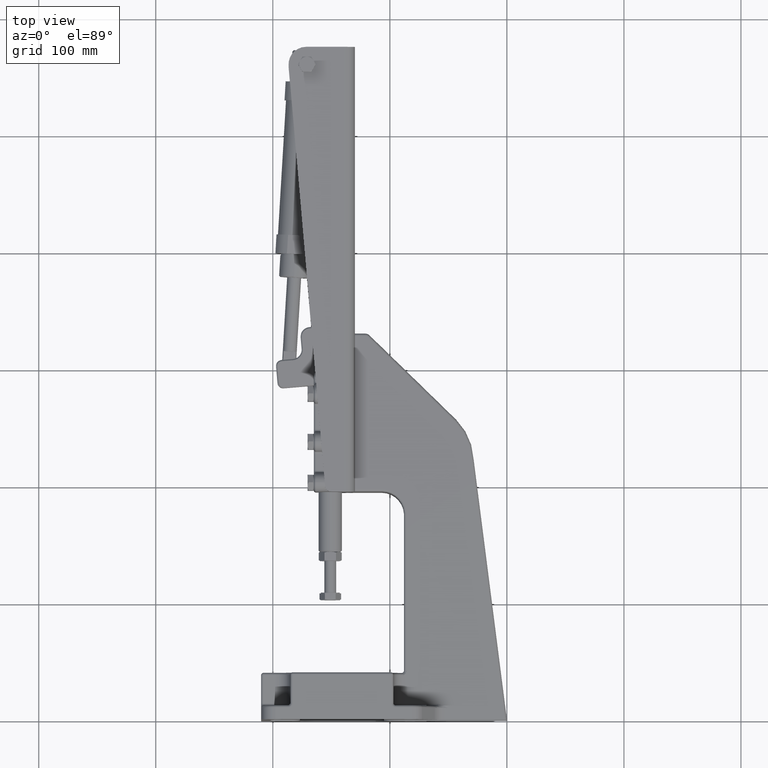
[diagram: clean part render]
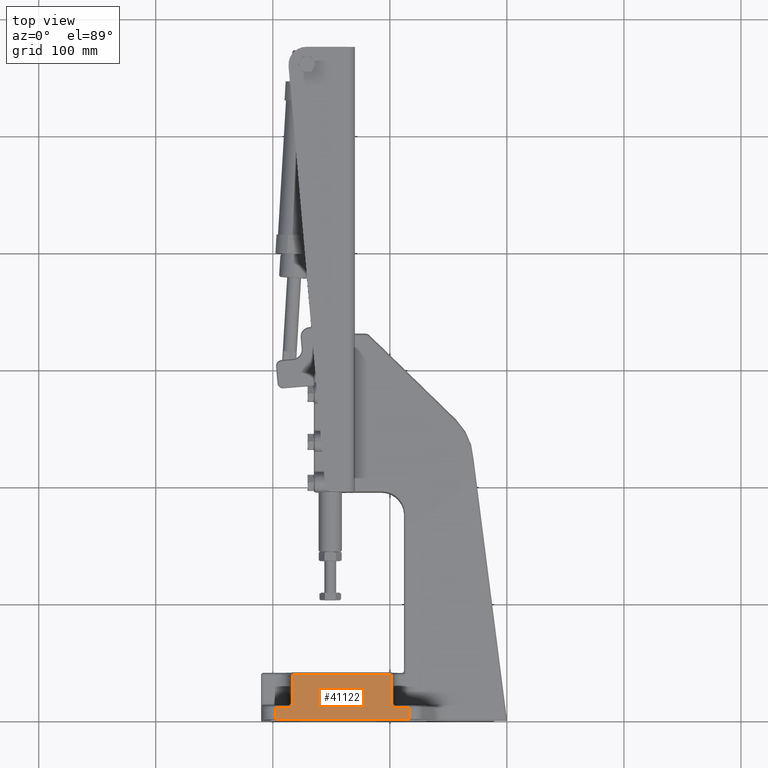
[diagram: same view with one face highlighted and labeled with its STEP entity id]
A machine part, top view. The second image highlights one B-rep face of the part: STEP entity #41122.
In plain terms, the highlighted planar face has unit normal (0, 0, 1).
Its self-contained STEP definition (entity closure, byte-faithful):
#679 = EDGE_CURVE ( 'NONE', #31481, #43839, #14918, .T. ) ;
#740 = VERTEX_POINT ( 'NONE', #31330 ) ;
#752 = ORIENTED_EDGE ( 'NONE', *, *, #47433, .T. ) ;
#975 = VERTEX_POINT ( 'NONE', #36627 ) ;
#1118 = CARTESIAN_POINT ( 'NONE',  ( -197.4999999999999400, 4.999997954310738500, 62.99999999999998600 ) ) ;
#2122 = LINE ( 'NONE', #14813, #22978 ) ;
#2893 = CARTESIAN_POINT ( 'NONE',  ( -95.65117687197815100, 10.03724001434191800, 62.99999999999998600 ) ) ;
#3084 = CARTESIAN_POINT ( 'NONE',  ( -98.39655428205703900, 11.88234690341328700, 62.99999999999998600 ) ) ;
#3622 = CARTESIAN_POINT ( 'NONE',  ( -183.1479819396858200, 12.90553550497596400, 63.00000000000000000 ) ) ;
#3722 = EDGE_CURVE ( 'NONE', #29068, #46707, #51072, .T. ) ;
#3800 = CARTESIAN_POINT ( 'NONE',  ( -184.6919927558711800, 10.71526550956282300, 63.00000000000000000 ) ) ;
#3983 = VECTOR ( 'NONE', #16330, 1000.000000000000000 ) ;
#5099 = ORIENTED_EDGE ( 'NONE', *, *, #36338, .F. ) ;
#5607 = CARTESIAN_POINT ( 'NONE',  ( -197.4999999999999400, -1.984805718320697100E-006, 62.99999999999998600 ) ) ;
#5639 = VECTOR ( 'NONE', #22974, 1000.000000000000100 ) ;
#5977 = ORIENTED_EDGE ( 'NONE', *, *, #12940, .T. ) ;
#6166 = LINE ( 'NONE', #12402, #50499 ) ;
#7096 = CARTESIAN_POINT ( 'NONE',  ( -96.28205824634190400, 10.21052060636581500, 63.00000000000000000 ) ) ;
#7283 = CARTESIAN_POINT ( 'NONE',  ( -98.58553286456498200, 12.22626110479905000, 63.00000000000000000 ) ) ;
#7614 = ORIENTED_EDGE ( 'NONE', *, *, #32899, .T. ) ;
#7809 = CARTESIAN_POINT ( 'NONE',  ( -183.2541490584441400, 12.59415721272771200, 62.99999999999995700 ) ) ;
#7979 = CARTESIAN_POINT ( 'NONE',  ( -185.2670086618838900, 10.39391625220581800, 62.99999999999997200 ) ) ;
#8426 = CARTESIAN_POINT ( 'NONE',  ( -183.0000000000001400, 13.99999795431086000, 62.99999999999998600 ) ) ;
#9145 = DIRECTION ( 'NONE',  ( -0.0000000000000000000, 1.000000000000000000, -0.0000000000000000000 ) ) ;
#9181 = VECTOR ( 'NONE', #16045, 1000.000000000000000 ) ;
#10676 = CARTESIAN_POINT ( 'NONE',  ( -95.00000000000031300, 9.999997954310712700, 62.99999999999998600 ) ) ;
#11221 = VERTEX_POINT ( 'NONE', #45269 ) ;
#11276 = CARTESIAN_POINT ( 'NONE',  ( -96.47001264296518700, 10.27946296903153300, 62.99999999999997200 ) ) ;
#11446 = CARTESIAN_POINT ( 'NONE',  ( -98.67013951434823600, 12.40857852222943900, 63.00000000000000000 ) ) ;
#11984 = CARTESIAN_POINT ( 'NONE',  ( -183.4079819476805300, 12.21666058303593000, 63.00000000000000000 ) ) ;
#12155 = CARTESIAN_POINT ( 'NONE',  ( -185.4117089329817200, 10.32877924646527000, 63.00000000000000000 ) ) ;
#12402 = CARTESIAN_POINT ( 'NONE',  ( -140.4517059221717500, 9.999997954310618600, 62.99999999999998600 ) ) ;
#12940 = EDGE_CURVE ( 'NONE', #53468, #975, #47056, .T. ) ;
#13668 = CARTESIAN_POINT ( 'NONE',  ( -197.4999999999999400, -1.923921984000001300E-006, 62.99999999999998600 ) ) ;
#14691 = B_SPLINE_CURVE_WITH_KNOTS ( 'NONE', 3,
 ( #44490, #15244, #2893, #31987, #7096, #36202, #11276, #40453, #15414, #44663, #19617, #48835, #23817, #53044, #28026, #3084, #32161, #7283, #36391, #11446, #40630, #15602, #44845 ),
 .UNSPECIFIED., .F., .F.,
 ( 4, 1, 1, 2, 2, 1, 1, 2, 2, 2, 1, 2, 2, 4 ),
 ( 0.0000000000000000000, 0.1250000000000076900, 0.1875000000000081600, 0.2187500000000115700, 0.2500000000000149300, 0.3750000000000163200, 0.4375000000000142700, 0.4687500000000134300, 0.5000000000000126600, 0.6250000000000089900, 0.6875000000000075500, 0.7187500000000067700, 0.7500000000000060000, 1.000000000000000000 ),
 .UNSPECIFIED. ) ;
#14813 = CARTESIAN_POINT ( 'NONE',  ( -98.99999999999961600, 18.99999801519441400, 62.99999999999998600 ) ) ;
#14918 = LINE ( 'NONE', #1118, #24697 ) ;
#15244 = CARTESIAN_POINT ( 'NONE',  ( -95.26276294616917500, 9.999530426474562400, 63.00000000000000000 ) ) ;
#15374 = ORIENTED_EDGE ( 'NONE', *, *, #47018, .T. ) ;
#15414 = CARTESIAN_POINT ( 'NONE',  ( -97.11799300934134700, 10.58798418656802700, 63.00000000000000000 ) ) ;
#15602 = CARTESIAN_POINT ( 'NONE',  ( -98.99992873155238700, 13.47398199506984200, 63.00000000000000000 ) ) ;
#16045 = DIRECTION ( 'NONE',  ( -0.0000000000000000000, -1.000000000000000000, -0.0000000000000000000 ) ) ;
#16124 = CARTESIAN_POINT ( 'NONE',  ( -183.8879284219335100, 11.47942955009997800, 62.99999999999998600 ) ) ;
#16319 = CARTESIAN_POINT ( 'NONE',  ( -185.9590606788071300, 10.10140521188155200, 62.99999999999998600 ) ) ;
#16330 = DIRECTION ( 'NONE',  ( -1.000000000000000000, -0.0000000000000000000, -0.0000000000000000000 ) ) ;
#17851 = DIRECTION ( 'NONE',  ( 1.000000000000000000, 0.0000000000000000000, 0.0000000000000000000 ) ) ;
#18327 = ORIENTED_EDGE ( 'NONE', *, *, #20933, .T. ) ;
#18715 = CARTESIAN_POINT ( 'NONE',  ( -83.40341184434360900, 18.99999801519441400, 62.99999999999998600 ) ) ;
#18758 = CARTESIAN_POINT ( 'NONE',  ( -105.0000000000000100, -1.022844665000000300E-006, 62.99999999999998600 ) ) ;
#19617 = CARTESIAN_POINT ( 'NONE',  ( -97.63459042540999600, 10.98955287581038200, 62.99999999999998600 ) ) ;
#20334 = CARTESIAN_POINT ( 'NONE',  ( -184.1306803110779800, 11.21268617427315600, 62.99999999999998600 ) ) ;
#20506 = CARTESIAN_POINT ( 'NONE',  ( -187.0000000000001700, 9.999997954310712700, 62.99999999999998600 ) ) ;
#20933 = EDGE_CURVE ( 'NONE', #21360, #11221, #14691, .T. ) ;
#20988 = DIRECTION ( 'NONE',  ( -1.000000000000000000, -0.0000000000000000000, -0.0000000000000000000 ) ) ;
#21360 = VERTEX_POINT ( 'NONE', #10676 ) ;
#22974 = DIRECTION ( 'NONE',  ( -0.9999999999999998900, -9.741377761904765000E-009, -0.0000000000000000000 ) ) ;
#22978 = VECTOR ( 'NONE', #35782, 1000.000000000000000 ) ;
#23817 = CARTESIAN_POINT ( 'NONE',  ( -97.78199226941309500, 11.12531155039710900, 63.00000000000001400 ) ) ;
#24343 = CARTESIAN_POINT ( 'NONE',  ( -182.9996118433224700, 13.73656342735063200, 62.99999999999995700 ) ) ;
#24522 = CARTESIAN_POINT ( 'NONE',  ( -184.1919160159218600, 11.15135282074953700, 63.00000000000000000 ) ) ;
#24641 = VERTEX_POINT ( 'NONE', #47649 ) ;
#24697 = VECTOR ( 'NONE', #9145, 1000.000000000000000 ) ;
#25850 = ORIENTED_EDGE ( 'NONE', *, *, #51559, .T. ) ;
#28026 = CARTESIAN_POINT ( 'NONE',  ( -98.18172880877769200, 11.56060706369512300, 62.99999999999998600 ) ) ;
#28373 = CARTESIAN_POINT ( 'NONE',  ( -183.0372334224929900, 13.34782890250499500, 63.00000000000002800 ) ) ;
#28564 = CARTESIAN_POINT ( 'NONE',  ( -183.0000000000001400, 13.99999795431086000, 62.99999999999998600 ) ) ;
#28737 = CARTESIAN_POINT ( 'NONE',  ( -184.3987908679858700, 10.95054104391770400, 63.00000000000000000 ) ) ;
#29068 = VERTEX_POINT ( 'NONE', #8426 ) ;
#29234 = AXIS2_PLACEMENT_3D ( 'NONE', #13668, #42894, #17851 ) ;
#31310 = LINE ( 'NONE', #41094, #9181 ) ;
#31330 = CARTESIAN_POINT ( 'NONE',  ( -83.40341184434360900, -8.124641412878115200E-007, 62.99999999999998600 ) ) ;
#31481 = VERTEX_POINT ( 'NONE', #5607 ) ;
#31987 = CARTESIAN_POINT ( 'NONE',  ( -96.09429808856180000, 10.14845357285801900, 62.99999999999998600 ) ) ;
#32161 = CARTESIAN_POINT ( 'NONE',  ( -98.49658219276203400, 12.04955235517739900, 62.99999999999998600 ) ) ;
#32660 = EDGE_CURVE ( 'NONE', #740, #24641, #44035, .T. ) ;
#32720 = CARTESIAN_POINT ( 'NONE',  ( -183.2097720202315000, 12.71838766634727400, 62.99999999999998600 ) ) ;
#32894 = CARTESIAN_POINT ( 'NONE',  ( -185.0694402549069700, 10.49242477344252800, 62.99999999999998600 ) ) ;
#32899 = EDGE_CURVE ( 'NONE', #46707, #43839, #6166, .T. ) ;
#32910 = CARTESIAN_POINT ( 'NONE',  ( -140.4517059221717500, 37.99999795431082100, 62.99999999999998600 ) ) ;
#33149 = DIRECTION ( 'NONE',  ( -1.000000000000000000, -0.0000000000000000000, -0.0000000000000000000 ) ) ;
#33889 = LINE ( 'NONE', #41832, #43764 ) ;
#35490 = DIRECTION ( 'NONE',  ( 0.0000000000000000000, 1.000000000000000000, 0.0000000000000000000 ) ) ;
#35782 = DIRECTION ( 'NONE',  ( 0.0000000000000000000, 1.000000000000000000, 0.0000000000000000000 ) ) ;
#36202 = CARTESIAN_POINT ( 'NONE',  ( -96.40675414374165100, 10.25509953533946500, 62.99999999999997200 ) ) ;
#36338 = EDGE_CURVE ( 'NONE', #740, #31481, #51315, .T. ) ;
#36391 = CARTESIAN_POINT ( 'NONE',  ( -98.64237170378868300, 12.34617878184850400, 62.99999999999998600 ) ) ;
#36627 = CARTESIAN_POINT ( 'NONE',  ( -183.0000000000001700, 37.99999795431082100, 62.99999999999998600 ) ) ;
#36918 = CARTESIAN_POINT ( 'NONE',  ( -183.2771314798677100, 12.53424600087540400, 62.99999999999998600 ) ) ;
#37087 = CARTESIAN_POINT ( 'NONE',  ( -185.3535761200438100, 10.35446513885224800, 63.00000000000000000 ) ) ;
#38473 = PLANE ( 'NONE',  #29234 ) ;
#38518 = ORIENTED_EDGE ( 'NONE', *, *, #679, .F. ) ;
#38861 = ORIENTED_EDGE ( 'NONE', *, *, #32660, .T. ) ;
#38939 = CARTESIAN_POINT ( 'NONE',  ( -98.99999999999981500, 37.99999795431082100, 62.99999999999998600 ) ) ;
#40453 = CARTESIAN_POINT ( 'NONE',  ( -96.77361807544362200, 10.40454724520286900, 63.00000000000001400 ) ) ;
#40630 = CARTESIAN_POINT ( 'NONE',  ( -98.89854705562007100, 12.95474984581869300, 62.99999999999998600 ) ) ;
#41094 = CARTESIAN_POINT ( 'NONE',  ( -183.0000000000002300, 18.99999801519441400, 62.99999999999998600 ) ) ;
#41122 = ADVANCED_FACE ( 'NONE', ( #49496 ), #38473, .T. ) ;
#41178 = CARTESIAN_POINT ( 'NONE',  ( -183.6006795961894800, 11.85815154208302900, 62.99999999999998600 ) ) ;
#41348 = CARTESIAN_POINT ( 'NONE',  ( -185.4399368089393400, 10.31667877991200800, 63.00000000000000000 ) ) ;
#41832 = CARTESIAN_POINT ( 'NONE',  ( -140.4517059221717500, 9.999997954310618600, 62.99999999999998600 ) ) ;
#42894 = DIRECTION ( 'NONE',  ( 0.0000000000000000000, 0.0000000000000000000, 1.000000000000000000 ) ) ;
#43764 = VECTOR ( 'NONE', #20988, 1000.000000000000000 ) ;
#43839 = VERTEX_POINT ( 'NONE', #47838 ) ;
#44035 = LINE ( 'NONE', #18715, #53795 ) ;
#44490 = CARTESIAN_POINT ( 'NONE',  ( -95.00000000000031300, 9.999997954310712700, 62.99999999999998600 ) ) ;
#44663 = CARTESIAN_POINT ( 'NONE',  ( -97.48484849167191200, 10.86033161892328800, 62.99999999999997200 ) ) ;
#44845 = CARTESIAN_POINT ( 'NONE',  ( -98.99999999999981500, 13.99999795431086000, 62.99999999999998600 ) ) ;
#45269 = CARTESIAN_POINT ( 'NONE',  ( -98.99999999999981500, 13.99999795431086000, 62.99999999999998600 ) ) ;
#45388 = CARTESIAN_POINT ( 'NONE',  ( -184.0471615604263600, 11.29995319305728600, 62.99999999999997200 ) ) ;
#45557 = CARTESIAN_POINT ( 'NONE',  ( -186.4689028430849500, 10.00006598703462600, 62.99999999999998600 ) ) ;
#46707 = VERTEX_POINT ( 'NONE', #47343 ) ;
#47018 = EDGE_CURVE ( 'NONE', #975, #29068, #31310, .T. ) ;
#47056 = LINE ( 'NONE', #32910, #3983 ) ;
#47343 = CARTESIAN_POINT ( 'NONE',  ( -187.0000000000001700, 9.999997954310712700, 62.99999999999998600 ) ) ;
#47433 = EDGE_CURVE ( 'NONE', #24641, #21360, #33889, .T. ) ;
#47649 = CARTESIAN_POINT ( 'NONE',  ( -83.40341184434360900, 9.999997954310670100, 63.00000000000000000 ) ) ;
#47838 = CARTESIAN_POINT ( 'NONE',  ( -197.4999999999999400, 9.999997954310760700, 62.99999999999998600 ) ) ;
#48070 = EDGE_LOOP ( 'NONE', ( #752, #18327, #25850, #5977, #15374, #51153, #7614, #38518, #5099, #38861 ) ) ;
#48835 = CARTESIAN_POINT ( 'NONE',  ( -97.73275574914568200, 11.07847836456507600, 63.00000000000000000 ) ) ;
#49496 = FACE_OUTER_BOUND ( 'NONE', #48070, .T. ) ;
#49565 = CARTESIAN_POINT ( 'NONE',  ( -184.1673102430870000, 11.17581555759506000, 63.00000000000000000 ) ) ;
#50499 = VECTOR ( 'NONE', #33149, 1000.000000000000000 ) ;
#51072 = B_SPLINE_CURVE_WITH_KNOTS ( 'NONE', 3,
 ( #28564, #24343, #28373, #3622, #32720, #7809, #36918, #11984, #41178, #16124, #45388, #20334, #49565, #24522, #53752, #28737, #3800, #32894, #7979, #37087, #12155, #41348, #16319, #45557, #20506 ),
 .UNSPECIFIED., .F., .F.,
 ( 4, 1, 1, 2, 2, 1, 1, 1, 1, 2, 2, 1, 1, 1, 2, 2, 4 ),
 ( 0.0000000000000000000, 0.1250000000000549600, 0.1875000000000833200, 0.2187500000000951700, 0.2500000000001070300, 0.3750000000001592600, 0.4375000000001857400, 0.4687500000001992300, 0.4843750000002062800, 0.4921875000002057200, 0.5000000000002051700, 0.6250000000001282300, 0.6875000000000894800, 0.7187500000000699400, 0.7343750000000599500, 0.7500000000000499600, 1.000000000000000000 ),
 .UNSPECIFIED. ) ;
#51153 = ORIENTED_EDGE ( 'NONE', *, *, #3722, .T. ) ;
#51315 = LINE ( 'NONE', #18758, #5639 ) ;
#51559 = EDGE_CURVE ( 'NONE', #11221, #53468, #2122, .T. ) ;
#53044 = CARTESIAN_POINT ( 'NONE',  ( -98.01416654608161100, 11.35660794623514000, 62.99999999999998600 ) ) ;
#53468 = VERTEX_POINT ( 'NONE', #38939 ) ;
#53752 = CARTESIAN_POINT ( 'NONE',  ( -184.2054261190006300, 11.13809944227606900, 62.99999999999998600 ) ) ;
#53795 = VECTOR ( 'NONE', #35490, 1000.000000000000000 ) ;